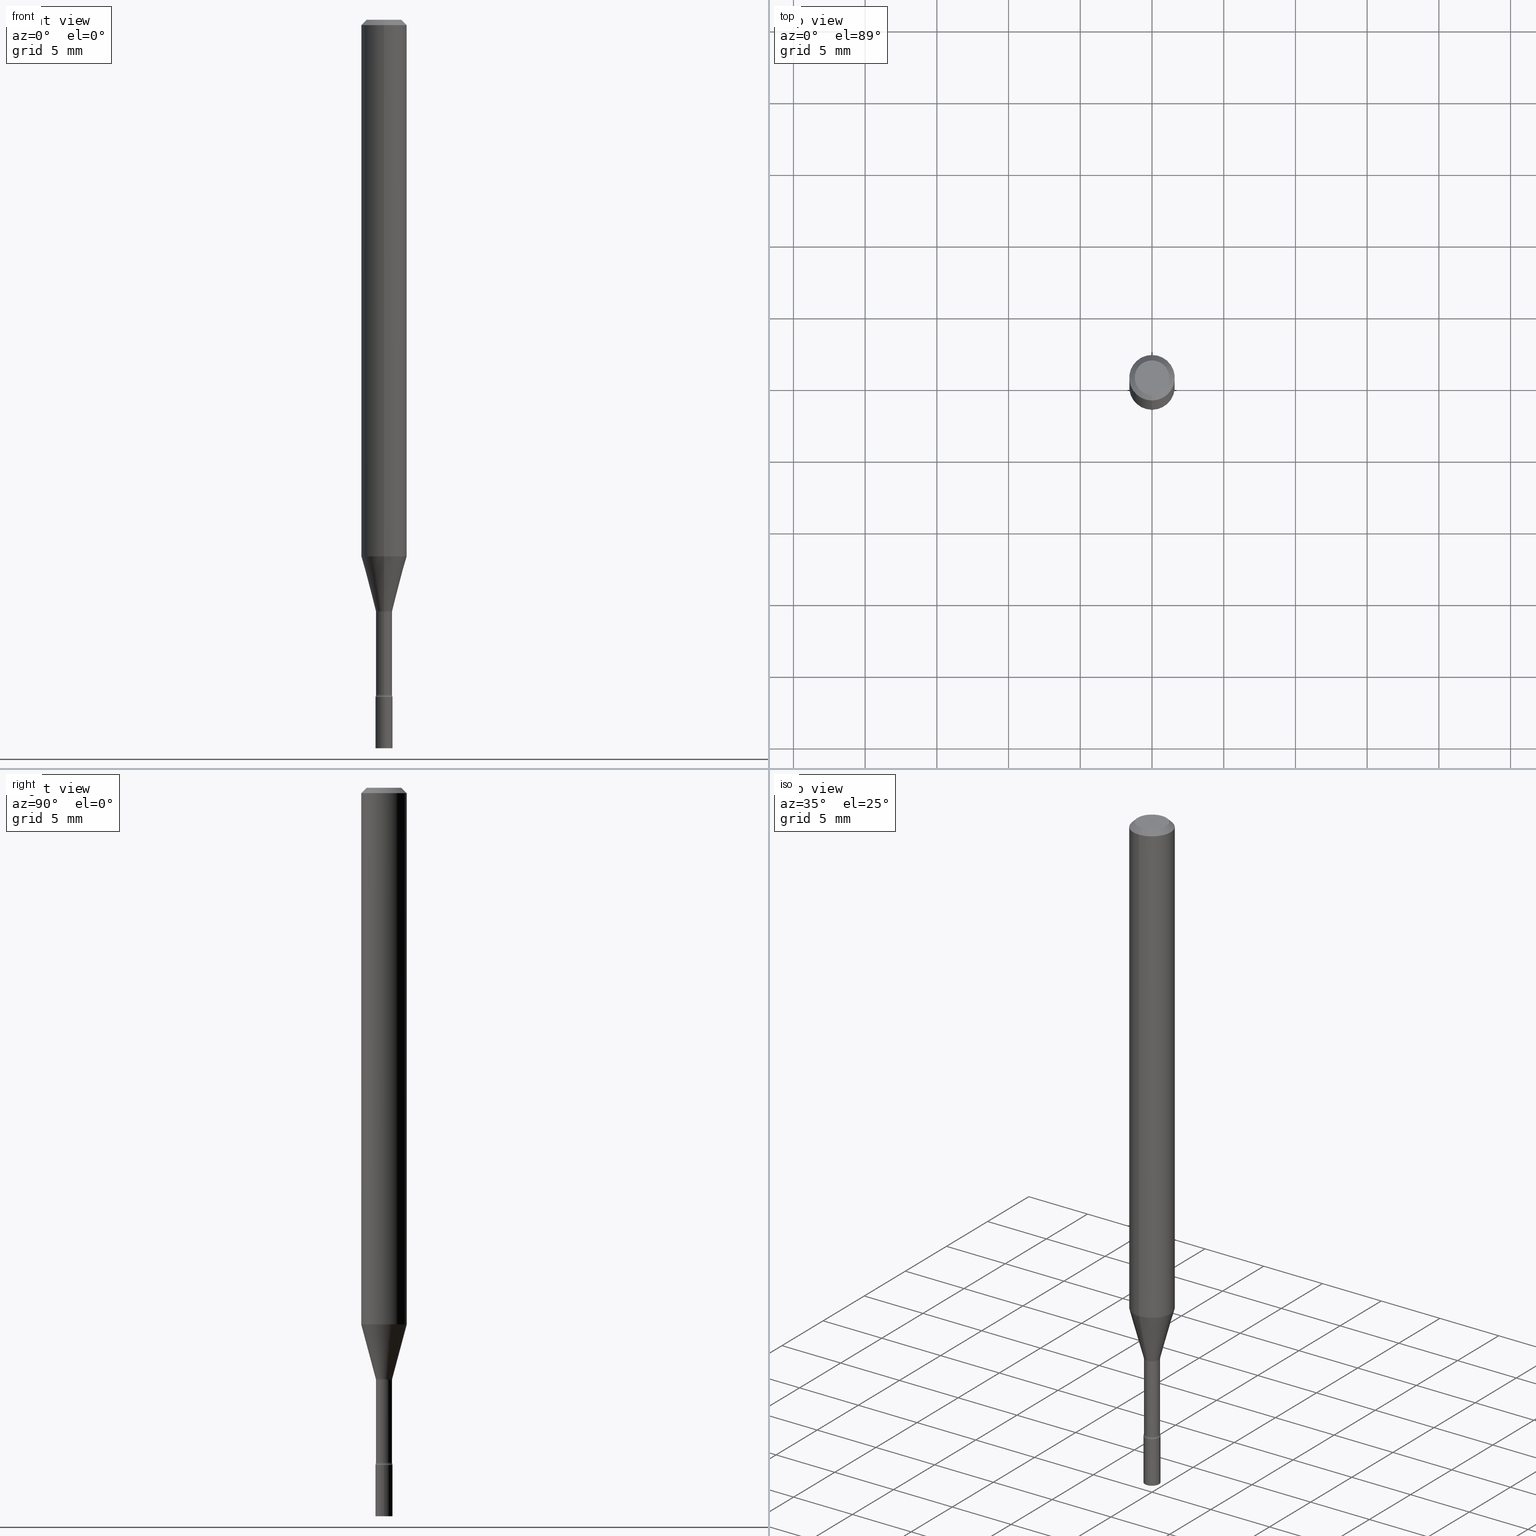
[diagram: canonical four-view strip — front | top / right | iso, engineering-drawing reading convention]
A machine part, canonical four-view strip (front | top / right | iso — engineering-drawing reading convention). The complete STEP part file that produces these views, byte-faithful:
ISO-10303-21;
HEADER;
FILE_DESCRIPTION (( 'STEP AP203' ),
    '1' );
FILE_NAME ('03409.STEP',
    '2024-03-08T21:18:24',
    ( '' ),
    ( '' ),
    'SwSTEP 2.0',
    'SolidWorks 2023',
    '' );
FILE_SCHEMA (( 'CONFIG_CONTROL_DESIGN' ));
ENDSEC;

DATA;
#1 = CARTESIAN_POINT ( 'NONE',  ( 3.668172361460384639E-31, -5.237266184094891392E-17, -0.01500000000000003067 ) ) ;
#2 = AXIS2_PLACEMENT_3D ( 'NONE', #41, #248, #3 ) ;
#3 = DIRECTION ( 'NONE',  ( -6.982962677686265922E-15, -1.000000000000000000, 3.491510789396586553E-15 ) ) ;
#4 = LOCAL_TIME ( 16, 18, 24.00000000000000000, #387 ) ;
#5 = ORIENTED_EDGE ( 'NONE', *, *, #213, .F. ) ;
#6 = EDGE_CURVE ( 'NONE', #166, #144, #128, .T. ) ;
#7 = DIRECTION ( 'NONE',  ( -1.000000000000000000, 6.982962677686265922E-15, -4.883557194083112340E-29 ) ) ;
#8 = ORIENTED_EDGE ( 'NONE', *, *, #517, .T. ) ;
#9 = AXIS2_PLACEMENT_3D ( 'NONE', #228, #465, #172 ) ;
#10 = CC_DESIGN_SECURITY_CLASSIFICATION ( #226, ( #60 ) ) ;
#11 = VERTEX_POINT ( 'NONE', #322 ) ;
#12 = PERSON_AND_ORGANIZATION ( #202, #287 ) ;
#13 = EDGE_CURVE ( 'NONE', #499, #20, #457, .T. ) ;
#14 = ORIENTED_EDGE ( 'NONE', *, *, #51, .T. ) ;
#15 = CARTESIAN_POINT ( 'NONE',  ( 2.636113549670369152E-16, 0.03709999999999432502, -1.625974787463811078 ) ) ;
#16 = CC_DESIGN_PERSON_AND_ORGANIZATION_ASSIGNMENT ( #12, #504, ( #60 ) ) ;
#17 = DIRECTION ( 'NONE',  ( -1.000000000000000000, 6.982962677686265922E-15, -4.876176775795935793E-29 ) ) ;
#18 = VECTOR ( 'NONE', #87, 39.37007874015748143 ) ;
#19 = CONICAL_SURFACE ( 'NONE', #262, 0.02261111260566402159, 0.2617993877991494633 ) ;
#20 = VERTEX_POINT ( 'NONE', #354 ) ;
#21 = CARTESIAN_POINT ( 'NONE',  ( 4.546126510698169319E-29, -6.490663808909408226E-15, -1.858999999999999986 ) ) ;
#22 = EDGE_LOOP ( 'NONE', ( #486, #268, #319, #136 ) ) ;
#23 = EDGE_CURVE ( 'NONE', #223, #315, #151, .T. ) ;
#24 = DIRECTION ( 'NONE',  ( 1.000000000000000000, -7.105427357601001070E-15, 4.926315869207342207E-29 ) ) ;
#25 = VECTOR ( 'NONE', #258, 39.37007874015748143 ) ;
#26 = AXIS2_PLACEMENT_3D ( 'NONE', #479, #444, #289 ) ;
#27 = ORIENTED_EDGE ( 'NONE', *, *, #345, .F. ) ;
#28 = CARTESIAN_POINT ( 'NONE',  ( 4.440892098500988052E-16, 0.06249999999999993755, -0.01500000000000024751 ) ) ;
#29 = ADVANCED_FACE ( 'NONE', ( #316 ), #70, .T. ) ;
#30 = ORIENTED_EDGE ( 'NONE', *, *, #380, .F. ) ;
#31 = CARTESIAN_POINT ( 'NONE',  ( 4.440892098500625669E-16, 0.06250000000000000000, -2.182194243372866596E-16 ) ) ;
#32 = MANIFOLD_SOLID_BREP ( 'Body-Move/Copy2[2]', #462 ) ;
#33 = DIRECTION ( 'NONE',  ( 6.982962677686265922E-15, 1.000000000000000000, -3.491510789396586948E-15 ) ) ;
#34 = EDGE_LOOP ( 'NONE', ( #439, #14, #325, #393 ) ) ;
#35 = APPROVAL_ROLE ( '' ) ;
#36 = CIRCLE ( 'NONE', #92, 0.01499999999999998036 ) ;
#37 = LOCAL_TIME ( 16, 18, 24.00000000000000000, #250 ) ;
#38 = DIRECTION ( 'NONE',  ( 2.445448240973584318E-29, -3.491510789396586948E-15, -1.000000000000000000 ) ) ;
#39 = ORIENTED_EDGE ( 'NONE', *, *, #345, .T. ) ;
#40 = VERTEX_POINT ( 'NONE', #216 ) ;
#41 = CARTESIAN_POINT ( 'NONE',  ( 0.000000000000000000, 0.000000000000000000, 0.000000000000000000 ) ) ;
#42 = ORIENTED_EDGE ( 'NONE', *, *, #89, .F. ) ;
#43 = CYLINDRICAL_SURFACE ( 'NONE', #182, 0.02350000000000000352 ) ;
#44 = DIRECTION ( 'NONE',  ( -6.982962677686266711E-15, -1.000000000000000000, 0.000000000000000000 ) ) ;
#45 = VECTOR ( 'NONE', #459, 39.37007874015748143 ) ;
#46 = VECTOR ( 'NONE', #394, 39.37007874015748143 ) ;
#47 = PLANE ( 'NONE',  #347 ) ;
#48 = APPROVAL_PERSON_ORGANIZATION ( #125, #447, #329 ) ;
#49 = EDGE_CURVE ( 'NONE', #499, #183, #469, .T. ) ;
#50 = EDGE_LOOP ( 'NONE', ( #185, #276, #265, #88 ) ) ;
#51 = EDGE_CURVE ( 'NONE', #223, #208, #245, .T. ) ;
#52 = AXIS2_PLACEMENT_3D ( 'NONE', #94, #54, #57 ) ;
#53 = LOCAL_TIME ( 16, 18, 24.00000000000000000, #501 ) ;
#54 = DIRECTION ( 'NONE',  ( -2.445448240973584878E-29, 3.491510789396586553E-15, 1.000000000000000000 ) ) ;
#55 = FACE_OUTER_BOUND ( 'NONE', #433, .T. ) ;
#56 = CC_DESIGN_PERSON_AND_ORGANIZATION_ASSIGNMENT ( #108, #383, ( #91 ) ) ;
#57 = DIRECTION ( 'NONE',  ( -6.982962677686265922E-15, -1.000000000000000000, 0.000000000000000000 ) ) ;
#58 = CIRCLE ( 'NONE', #381, 0.02350000000000000352 ) ;
#59 = DIRECTION ( 'NONE',  ( 1.000000000000000000, -6.982962677686269866E-15, 0.000000000000000000 ) ) ;
#60 = PRODUCT_DEFINITION_FORMATION_WITH_SPECIFIED_SOURCE ( 'ANY', '', #103, .NOT_KNOWN. ) ;
#61 = ADVANCED_FACE ( 'NONE', ( #150 ), #514, .T. ) ;
#62 = ORIENTED_EDGE ( 'NONE', *, *, #95, .F. ) ;
#63 = EDGE_CURVE ( 'NONE', #64, #11, #255, .T. ) ;
#64 = VERTEX_POINT ( 'NONE', #510 ) ;
#65 = DATE_AND_TIME ( #461, #4 ) ;
#66 = EDGE_LOOP ( 'NONE', ( #385, #350, #71, #308 ) ) ;
#67 = CARTESIAN_POINT ( 'NONE',  ( 3.976237183870775578E-29, -5.677108513716717305E-15, -1.625974787463811078 ) ) ;
#68 = CIRCLE ( 'NONE', #341, 0.04749999999999999362 ) ;
#69 = ORIENTED_EDGE ( 'NONE', *, *, #49, .T. ) ;
#70 = PLANE ( 'NONE',  #9 ) ;
#71 = ORIENTED_EDGE ( 'NONE', *, *, #502, .T. ) ;
#72 = APPROVAL ( #344, 'UNSPECIFIED' ) ;
#73 = CARTESIAN_POINT ( 'NONE',  ( -1.543234751768267479E-16, -0.02210000000000568107, -1.625974787463811078 ) ) ;
#74 = CARTESIAN_POINT ( 'NONE',  ( 3.668172361460384639E-31, -5.237266184094891392E-17, -0.01500000000000003067 ) ) ;
#75 = EDGE_LOOP ( 'NONE', ( #164, #395, #432, #42 ) ) ;
#76 = ADVANCED_FACE ( 'NONE', ( #186 ), #167, .F. ) ;
#77 = DIRECTION ( 'NONE',  ( -6.982962677686265922E-15, -1.000000000000000000, 3.491510789396586948E-15 ) ) ;
#78 = EDGE_CURVE ( 'NONE', #249, #40, #218, .T. ) ;
#79 = LINE ( 'NONE', #200, #323 ) ;
#80 = DIRECTION ( 'NONE',  ( -2.445468806185136597E-29, 3.491481338843145583E-15, 1.000000000000000000 ) ) ;
#81 = LINE ( 'NONE', #165, #18 ) ;
#82 = SHAPE_DEFINITION_REPRESENTATION ( #430, #420 ) ;
#83 = CYLINDRICAL_SURFACE ( 'NONE', #2, 0.06250000000000000000 ) ;
#84 = CYLINDRICAL_SURFACE ( 'NONE', #392, 0.02210000000000002587 ) ;
#85 = AXIS2_PLACEMENT_3D ( 'NONE', #148, #131, #306 ) ;
#86 = CIRCLE ( 'NONE', #275, 0.02350000000000000352 ) ;
#87 = DIRECTION ( 'NONE',  ( -2.445448240973584878E-29, 3.491510789396586948E-15, 1.000000000000000000 ) ) ;
#88 = ORIENTED_EDGE ( 'NONE', *, *, #351, .F. ) ;
#89 = EDGE_CURVE ( 'NONE', #179, #20, #109, .T. ) ;
#90 = DIRECTION ( 'NONE',  ( 6.982962677686265922E-15, 1.000000000000000000, -3.483106191921935554E-15 ) ) ;
#91 = PRODUCT_DEFINITION ( 'UNKNOWN', '', #60, #494 ) ;
#92 = AXIS2_PLACEMENT_3D ( 'NONE', #361, #241, #412 ) ;
#93 = VECTOR ( 'NONE', #452, 39.37007874015748143 ) ;
#94 = CARTESIAN_POINT ( 'NONE',  ( 3.966743255192128209E-29, -5.663553471389566321E-15, -1.622092501787272933 ) ) ;
#95 = EDGE_CURVE ( 'NONE', #104, #208, #181, .T. ) ;
#96 = DIRECTION ( 'NONE',  ( -2.445448240973584878E-29, 3.491510789396586553E-15, 1.000000000000000000 ) ) ;
#97 = EDGE_CURVE ( 'NONE', #166, #179, #415, .T. ) ;
#98 = AXIS2_PLACEMENT_3D ( 'NONE', #424, #145, #318 ) ;
#99 = AXIS2_PLACEMENT_3D ( 'NONE', #302, #257, #112 ) ;
#100 = PERSON_AND_ORGANIZATION_ROLE ( 'classification_officer' ) ;
#101 = ORIENTED_EDGE ( 'NONE', *, *, #51, .F. ) ;
#102 = DIRECTION ( 'NONE',  ( -6.982962677686265922E-15, -1.000000000000000000, 0.000000000000000000 ) ) ;
#103 = PRODUCT ( '03409', '03409', '', ( #485 ) ) ;
#104 = VERTEX_POINT ( 'NONE', #73 ) ;
#105 = DIRECTION ( 'NONE',  ( -2.445448240973584878E-29, 3.491510789396586553E-15, 1.000000000000000000 ) ) ;
#106 = CIRCLE ( 'NONE', #403, 0.06250000000000000000 ) ;
#107 = CC_DESIGN_APPROVAL ( #447, ( #60 ) ) ;
#108 = PERSON_AND_ORGANIZATION ( #202, #287 ) ;
#109 = LINE ( 'NONE', #379, #45 ) ;
#110 = CARTESIAN_POINT ( 'NONE',  ( 3.602695845204330567E-29, -5.143781497267456685E-15, -1.473225147374217503 ) ) ;
#111 = EDGE_LOOP ( 'NONE', ( #466, #417 ) ) ;
#112 = DIRECTION ( 'NONE',  ( 1.000000000000000000, -6.982962677686269866E-15, 0.000000000000000000 ) ) ;
#113 = DIRECTION ( 'NONE',  ( -6.982962677686266711E-15, -1.000000000000000000, 3.491510789396587342E-15 ) ) ;
#114 = AXIS2_PLACEMENT_3D ( 'NONE', #122, #295, #77 ) ;
#115 = CIRCLE ( 'NONE', #470, 0.06250000000000000000 ) ;
#116 = CARTESIAN_POINT ( 'NONE',  ( 0.000000000000000000, 0.000000000000000000, 0.000000000000000000 ) ) ;
#117 = APPROVAL_ROLE ( '' ) ;
#118 = CARTESIAN_POINT ( 'NONE',  ( 0.02350000000000000352, -7.147062300611918023E-15, -2.000000000000000000 ) ) ;
#119 = ORIENTED_EDGE ( 'NONE', *, *, #372, .F. ) ;
#120 = DIRECTION ( 'NONE',  ( 4.937700262164548042E-15, 0.7071067811865451302, -0.7071067811865499042 ) ) ;
#121 = APPROVAL_DATE_TIME ( #291, #447 ) ;
#122 = CARTESIAN_POINT ( 'NONE',  ( 4.530652276630265840E-29, -6.468570703757412318E-15, -1.852672283192177582 ) ) ;
#123 = CALENDAR_DATE ( 2024, 8, 3 ) ;
#124 = DIRECTION ( 'NONE',  ( 2.445448240973584878E-29, -3.491510789396586553E-15, -1.000000000000000000 ) ) ;
#125 = PERSON_AND_ORGANIZATION ( #202, #287 ) ;
#126 = TOROIDAL_SURFACE ( 'NONE', #114, 0.03710000000000002879, 0.01499999999999998036 ) ;
#127 = DIRECTION ( 'NONE',  ( -6.982962677686265922E-15, -1.000000000000000000, 0.000000000000000000 ) ) ;
#128 = LINE ( 'NONE', #31, #25 ) ;
#129 = CIRCLE ( 'NONE', #261, 0.01499999999999998036 ) ;
#130 =( GEOMETRIC_REPRESENTATION_CONTEXT ( 3 ) GLOBAL_UNCERTAINTY_ASSIGNED_CONTEXT ( ( #227 ) ) GLOBAL_UNIT_ASSIGNED_CONTEXT ( ( #147, #171, #146 ) ) REPRESENTATION_CONTEXT ( 'NONE', 'WORKASPACE' ) );
#131 = DIRECTION ( 'NONE',  ( -2.445448240973584878E-29, 3.491510789396586553E-15, 1.000000000000000000 ) ) ;
#132 = DIRECTION ( 'NONE',  ( 1.000000000000000000, -6.982962677686265922E-15, 4.876176775795935793E-29 ) ) ;
#133 = FACE_OUTER_BOUND ( 'NONE', #210, .T. ) ;
#134 = EDGE_LOOP ( 'NONE', ( #438, #449, #408, #27 ) ) ;
#135 = CARTESIAN_POINT ( 'NONE',  ( 3.668172361460384639E-31, -5.237266184094891392E-17, -0.01500000000000003067 ) ) ;
#136 = ORIENTED_EDGE ( 'NONE', *, *, #502, .F. ) ;
#137 = ADVANCED_FACE ( 'NONE', ( #170 ), #173, .F. ) ;
#138 = CARTESIAN_POINT ( 'NONE',  ( 0.000000000000000000, 0.000000000000000000, 0.000000000000000000 ) ) ;
#139 = DIRECTION ( 'NONE',  ( -2.445448240973584878E-29, 3.491510789396586553E-15, 1.000000000000000000 ) ) ;
#140 = ORIENTED_EDGE ( 'NONE', *, *, #198, .F. ) ;
#141 = AXIS2_PLACEMENT_3D ( 'NONE', #285, #487, #330 ) ;
#142 = DIRECTION ( 'NONE',  ( -2.445448240973584878E-29, 3.491510789396586553E-15, 1.000000000000000000 ) ) ;
#143 = DATE_AND_TIME ( #176, #53 ) ;
#144 = VERTEX_POINT ( 'NONE', #28 ) ;
#145 = DIRECTION ( 'NONE',  ( -2.445448240973584878E-29, 3.491510789396586553E-15, 1.000000000000000000 ) ) ;
#146 =( NAMED_UNIT ( * ) SI_UNIT ( $, .STERADIAN. ) SOLID_ANGLE_UNIT ( ) );
#147 =( CONVERSION_BASED_UNIT ( 'INCH', #426 ) LENGTH_UNIT ( ) NAMED_UNIT ( #468 ) );
#148 = CARTESIAN_POINT ( 'NONE',  ( 3.976270622386257300E-29, -5.677060627859345352E-15, -1.625974787463811078 ) ) ;
#149 = EDGE_LOOP ( 'NONE', ( #425, #155 ) ) ;
#150 = FACE_OUTER_BOUND ( 'NONE', #518, .T. ) ;
#151 = CIRCLE ( 'NONE', #52, 0.02261111260566402159 ) ;
#152 = APPLICATION_PROTOCOL_DEFINITION ( 'international standard', 'config_control_design', 1994, #349 ) ;
#153 = EDGE_CURVE ( 'NONE', #183, #499, #68, .T. ) ;
#154 = FACE_OUTER_BOUND ( 'NONE', #288, .T. ) ;
#155 = ORIENTED_EDGE ( 'NONE', *, *, #455, .T. ) ;
#156 = CYLINDRICAL_SURFACE ( 'NONE', #211, 0.02350000000000000352 ) ;
#157 = ADVANCED_FACE ( 'NONE', ( #203 ), #47, .F. ) ;
#158 = CARTESIAN_POINT ( 'NONE',  ( 4.546088279969894433E-29, -6.490718557488255193E-15, -1.858999999999999986 ) ) ;
#159 = AXIS2_PLACEMENT_3D ( 'NONE', #445, #7, #44 ) ;
#160 = AXIS2_PLACEMENT_3D ( 'NONE', #374, #199, #196 ) ;
#161 = FACE_OUTER_BOUND ( 'NONE', #50, .T. ) ;
#162 = COORDINATED_UNIVERSAL_TIME_OFFSET ( 5, 0, .BEHIND. ) ;
#163 = DIRECTION ( 'NONE',  ( -6.982962677686265922E-15, -1.000000000000000000, 0.000000000000000000 ) ) ;
#164 = ORIENTED_EDGE ( 'NONE', *, *, #198, .T. ) ;
#165 = CARTESIAN_POINT ( 'NONE',  ( -1.543234751768666594E-16, -0.02210000000000002587, 7.716238844566465556E-17 ) ) ;
#166 = VERTEX_POINT ( 'NONE', #410 ) ;
#167 = TOROIDAL_SURFACE ( 'NONE', #85, 0.03710000000000000103, 0.01499999999999998730 ) ;
#168 = CIRCLE ( 'NONE', #416, 0.02350000000000000352 ) ;
#169 = LINE ( 'NONE', #338, #93 ) ;
#170 = FACE_OUTER_BOUND ( 'NONE', #134, .T. ) ;
#171 =( NAMED_UNIT ( * ) PLANE_ANGLE_UNIT ( ) SI_UNIT ( $, .RADIAN. ) );
#172 = DIRECTION ( 'NONE',  ( 1.000000000000000000, -6.982962677686265922E-15, 4.876176775795935793E-29 ) ) ;
#173 = TOROIDAL_SURFACE ( 'NONE', #98, 0.03710000000000002879, 0.01499999999999998036 ) ;
#174 = CC_DESIGN_APPROVAL ( #343, ( #91 ) ) ;
#175 = DIRECTION ( 'NONE',  ( -6.982962677686265922E-15, -1.000000000000000000, 0.000000000000000000 ) ) ;
#176 = CALENDAR_DATE ( 2024, 8, 3 ) ;
#177 = EDGE_CURVE ( 'NONE', #223, #166, #368, .T. ) ;
#178 = DIRECTION ( 'NONE',  ( -2.445448240973584878E-29, 3.491510789396586553E-15, 1.000000000000000000 ) ) ;
#179 = VERTEX_POINT ( 'NONE', #193 ) ;
#180 = ORIENTED_EDGE ( 'NONE', *, *, #63, .F. ) ;
#181 = CIRCLE ( 'NONE', #234, 0.02210000000000000506 ) ;
#182 = AXIS2_PLACEMENT_3D ( 'NONE', #391, #270, #132 ) ;
#183 = VERTEX_POINT ( 'NONE', #362 ) ;
#184 = DIRECTION ( 'NONE',  ( 7.105427357601001859E-15, 1.000000000000000000, 0.000000000000000000 ) ) ;
#185 = ORIENTED_EDGE ( 'NONE', *, *, #6, .F. ) ;
#186 = FACE_OUTER_BOUND ( 'NONE', #34, .T. ) ;
#187 = PERSON_AND_ORGANIZATION ( #202, #287 ) ;
#188 = LINE ( 'NONE', #396, #382 ) ;
#189 = DIRECTION ( 'NONE',  ( -6.982962677686265922E-15, -1.000000000000000000, 4.370956789862821150E-15 ) ) ;
#190 = VECTOR ( 'NONE', #434, 39.37007874015748143 ) ;
#191 = ORIENTED_EDGE ( 'NONE', *, *, #455, .F. ) ;
#192 = DATE_AND_TIME ( #277, #436 ) ;
#193 = CARTESIAN_POINT ( 'NONE',  ( -4.364351673553557762E-16, -0.06250000000000517641, -1.473225147374217281 ) ) ;
#194 = DIRECTION ( 'NONE',  ( -6.982962677686265922E-15, -1.000000000000000000, 3.491510789396586553E-15 ) ) ;
#195 = APPROVAL_STATUS ( 'not_yet_approved' ) ;
#196 = DIRECTION ( 'NONE',  ( -6.982962677686265922E-15, -1.000000000000000000, 3.491510789396586948E-15 ) ) ;
#197 = FACE_OUTER_BOUND ( 'NONE', #66, .T. ) ;
#198 = EDGE_CURVE ( 'NONE', #179, #166, #106, .T. ) ;
#199 = DIRECTION ( 'NONE',  ( -2.445448240973584318E-29, 3.491510789396586948E-15, 1.000000000000000000 ) ) ;
#200 = CARTESIAN_POINT ( 'NONE',  ( 4.364351673553919652E-16, 0.06249999999999995143, -0.01500000000000024751 ) ) ;
#201 = APPROVAL_STATUS ( 'not_yet_approved' ) ;
#202 = PERSON ( 'UNSPECIFIED', 'UNSPECIFIED', 'UNSPECIFIED', ('UNSPECIFIED'), ('UNSPECIFIED'), ('UNSPECIFIED') ) ;
#203 = FACE_OUTER_BOUND ( 'NONE', #353, .T. ) ;
#204 = APPLICATION_CONTEXT ( 'configuration controlled 3d designs of mechanical parts and assemblies' ) ;
#205 = AXIS2_PLACEMENT_3D ( 'NONE', #74, #440, #279 ) ;
#206 = DIRECTION ( 'NONE',  ( -2.445448240973584878E-29, 3.491510789396586553E-15, 1.000000000000000000 ) ) ;
#207 = ORIENTED_EDGE ( 'NONE', *, *, #78, .T. ) ;
#208 = VERTEX_POINT ( 'NONE', #292 ) ;
#209 = EDGE_CURVE ( 'NONE', #315, #104, #219, .T. ) ;
#210 = EDGE_LOOP ( 'NONE', ( #282, #503, #62, #5 ) ) ;
#211 = AXIS2_PLACEMENT_3D ( 'NONE', #116, #448, #398 ) ;
#212 = AXIS2_PLACEMENT_3D ( 'NONE', #260, #307, #163 ) ;
#213 = EDGE_CURVE ( 'NONE', #64, #104, #81, .T. ) ;
#214 = ORIENTED_EDGE ( 'NONE', *, *, #512, .F. ) ;
#215 = DIRECTION ( 'NONE',  ( -2.445468806185136597E-29, 3.491481338843145583E-15, 1.000000000000000000 ) ) ;
#216 = CARTESIAN_POINT ( 'NONE',  ( -0.02350000000000000352, -6.569835700394226398E-15, -1.858999999999999986 ) ) ;
#217 = DIRECTION ( 'NONE',  ( -6.982962677686265922E-15, -1.000000000000000000, 3.491510789396586553E-15 ) ) ;
#218 = LINE ( 'NONE', #278, #190 ) ;
#219 = CIRCLE ( 'NONE', #159, 0.01499999999999998557 ) ;
#220 = CARTESIAN_POINT ( 'NONE',  ( 0.000000000000000000, 0.000000000000000000, 0.000000000000000000 ) ) ;
#221 = ORIENTED_EDGE ( 'NONE', *, *, #380, .T. ) ;
#222 = VERTEX_POINT ( 'NONE', #443 ) ;
#223 = VERTEX_POINT ( 'NONE', #478 ) ;
#224 = DIRECTION ( 'NONE',  ( -6.982962677686265922E-15, -1.000000000000000000, 4.370956789862821150E-15 ) ) ;
#225 = AXIS2_PLACEMENT_3D ( 'NONE', #513, #497, #102 ) ;
#226 = SECURITY_CLASSIFICATION ( '', '', #253 ) ;
#227 = UNCERTAINTY_MEASURE_WITH_UNIT (LENGTH_MEASURE( 1.000000000000000082E-05 ), #147, 'distance_accuracy_value', 'NONE');
#228 = CARTESIAN_POINT ( 'NONE',  ( 4.546126510698169319E-29, -6.490663808909408226E-15, -1.858999999999999986 ) ) ;
#229 = DIRECTION ( 'NONE',  ( -6.982962677686265922E-15, -1.000000000000000000, 0.000000000000000000 ) ) ;
#230 = ORIENTED_EDGE ( 'NONE', *, *, #78, .F. ) ;
#231 = PERSON_AND_ORGANIZATION ( #202, #287 ) ;
#232 = EDGE_CURVE ( 'NONE', #11, #208, #240, .T. ) ;
#233 = CARTESIAN_POINT ( 'NONE',  ( 4.890937612370273194E-29, -6.982962677686291165E-15, -2.000000000000000000 ) ) ;
#234 = AXIS2_PLACEMENT_3D ( 'NONE', #67, #397, #509 ) ;
#235 = CIRCLE ( 'NONE', #26, 0.02350000000000000352 ) ;
#236 = CARTESIAN_POINT ( 'NONE',  ( -1.640996229255817199E-16, -0.02350000000000648098, -1.858999999999999986 ) ) ;
#237 = CARTESIAN_POINT ( 'NONE',  ( 3.976270622386257300E-29, -5.677060627859345352E-15, -1.625974787463811078 ) ) ;
#238 = CARTESIAN_POINT ( 'NONE',  ( -3.773273898774340269E-16, -0.04749999999999999362, 1.369342504697572890E-16 ) ) ;
#239 = MANIFOLD_SOLID_BREP ( 'Body-Move/Copy2[1]', #313 ) ;
#240 = LINE ( 'NONE', #516, #274 ) ;
#241 = DIRECTION ( 'NONE',  ( -1.000000000000000000, 6.982962677686265922E-15, -4.883557194083112340E-29 ) ) ;
#242 = ORIENTED_EDGE ( 'NONE', *, *, #209, .T. ) ;
#243 = APPROVAL_DATE_TIME ( #454, #72 ) ;
#244 = CARTESIAN_POINT ( 'NONE',  ( -0.02350000000000000352, -6.569835700394226398E-15, -2.000000000000000000 ) ) ;
#245 = CIRCLE ( 'NONE', #481, 0.01499999999999998557 ) ;
#246 = FACE_OUTER_BOUND ( 'NONE', #111, .T. ) ;
#247 = CIRCLE ( 'NONE', #212, 0.02210000000000000506 ) ;
#248 = DIRECTION ( 'NONE',  ( -2.445448240973584878E-29, 3.491510789396586553E-15, 1.000000000000000000 ) ) ;
#249 = VERTEX_POINT ( 'NONE', #244 ) ;
#250 = COORDINATED_UNIVERSAL_TIME_OFFSET ( 5, 0, .BEHIND. ) ;
#251 = FACE_OUTER_BOUND ( 'NONE', #252, .T. ) ;
#252 = EDGE_LOOP ( 'NONE', ( #375, #336 ) ) ;
#253 = SECURITY_CLASSIFICATION_LEVEL ( 'unclassified' ) ;
#254 = ADVANCED_FACE ( 'NONE', ( #161 ), #83, .T. ) ;
#255 = CIRCLE ( 'NONE', #298, 0.02210000000000004669 ) ;
#256 = CIRCLE ( 'NONE', #99, 0.02350000000000000352 ) ;
#257 = DIRECTION ( 'NONE',  ( -2.445468806185136597E-29, 3.491481338843145583E-15, 1.000000000000000000 ) ) ;
#258 = DIRECTION ( 'NONE',  ( -2.445448240973584878E-29, 3.491510789396586948E-15, 1.000000000000000000 ) ) ;
#259 = CARTESIAN_POINT ( 'NONE',  ( -4.287811248607203282E-16, -0.06250000000000005551, -0.01499999999999981209 ) ) ;
#260 = CARTESIAN_POINT ( 'NONE',  ( 3.976237183870775578E-29, -5.677108513716717305E-15, -1.625974787463811078 ) ) ;
#261 = AXIS2_PLACEMENT_3D ( 'NONE', #474, #327, #360 ) ;
#262 = AXIS2_PLACEMENT_3D ( 'NONE', #267, #139, #431 ) ;
#263 = ORIENTED_EDGE ( 'NONE', *, *, #264, .F. ) ;
#264 = EDGE_CURVE ( 'NONE', #315, #223, #321, .T. ) ;
#265 = ORIENTED_EDGE ( 'NONE', *, *, #89, .T. ) ;
#266 = CYLINDRICAL_SURFACE ( 'NONE', #405, 0.06250000000000000000 ) ;
#267 = CARTESIAN_POINT ( 'NONE',  ( 3.966743255192128209E-29, -5.663553471389566321E-15, -1.622092501787272933 ) ) ;
#268 = ORIENTED_EDGE ( 'NONE', *, *, #13, .T. ) ;
#269 = DIRECTION ( 'NONE',  ( -2.445448240973584878E-29, 3.491510789396586553E-15, 1.000000000000000000 ) ) ;
#270 = DIRECTION ( 'NONE',  ( -2.445468806185136597E-29, 3.491481338843145583E-15, 1.000000000000000000 ) ) ;
#271 = ADVANCED_FACE ( 'NONE', ( #197 ), #356, .T. ) ;
#272 = ORIENTED_EDGE ( 'NONE', *, *, #314, .F. ) ;
#273 = DIRECTION ( 'NONE',  ( -6.982962677686266711E-15, -1.000000000000000000, 3.491510789396587342E-15 ) ) ;
#274 = VECTOR ( 'NONE', #333, 39.37007874015748143 ) ;
#275 = AXIS2_PLACEMENT_3D ( 'NONE', #21, #215, #59 ) ;
#276 = ORIENTED_EDGE ( 'NONE', *, *, #97, .T. ) ;
#277 = CALENDAR_DATE ( 2024, 8, 3 ) ;
#278 = CARTESIAN_POINT ( 'NONE',  ( -0.02350000000000000352, 1.669775429036235687E-16, -1.155949746209903035E-30 ) ) ;
#279 = DIRECTION ( 'NONE',  ( -6.982962677686265922E-15, -1.000000000000000000, 3.483106191921935554E-15 ) ) ;
#280 = EDGE_CURVE ( 'NONE', #464, #355, #58, .T. ) ;
#281 = DIRECTION ( 'NONE',  ( 6.982962677686265922E-15, 1.000000000000000000, -3.483106191921935554E-15 ) ) ;
#282 = ORIENTED_EDGE ( 'NONE', *, *, #63, .T. ) ;
#283 = ADVANCED_FACE ( 'NONE', ( #297 ), #126, .F. ) ;
#284 = DATE_TIME_ROLE ( 'creation_date' ) ;
#285 = CARTESIAN_POINT ( 'NONE',  ( 3.966743255192128209E-29, -5.663553471389566321E-15, -1.622092501787272933 ) ) ;
#286 = AXIS2_PLACEMENT_3D ( 'NONE', #237, #404, #324 ) ;
#287 = ORGANIZATION ( 'UNSPECIFIED', 'UNSPECIFIED', '' ) ;
#288 = EDGE_LOOP ( 'NONE', ( #101, #263, #242, #413 ) ) ;
#289 = DIRECTION ( 'NONE',  ( 1.000000000000000000, -6.982962677686269866E-15, 0.000000000000000000 ) ) ;
#290 = DIRECTION ( 'NONE',  ( -2.445448240973584878E-29, 3.491510789396586553E-15, 1.000000000000000000 ) ) ;
#291 = DATE_AND_TIME ( #123, #37 ) ;
#292 = CARTESIAN_POINT ( 'NONE',  ( 1.570299446030275858E-16, 0.02209999999999432904, -1.625974787463811078 ) ) ;
#293 = FACE_OUTER_BOUND ( 'NONE', #75, .T. ) ;
#294 = EDGE_CURVE ( 'NONE', #339, #249, #328, .T. ) ;
#295 = DIRECTION ( 'NONE',  ( -2.445448240973584878E-29, 3.491510789396586553E-15, 1.000000000000000000 ) ) ;
#296 = ORIENTED_EDGE ( 'NONE', *, *, #23, .T. ) ;
#297 = FACE_OUTER_BOUND ( 'NONE', #389, .T. ) ;
#298 = AXIS2_PLACEMENT_3D ( 'NONE', #471, #269, #229 ) ;
#299 = FACE_OUTER_BOUND ( 'NONE', #378, .T. ) ;
#300 = CC_DESIGN_PERSON_AND_ORGANIZATION_ASSIGNMENT ( #511, #100, ( #226 ) ) ;
#301 = ORIENTED_EDGE ( 'NONE', *, *, #372, .T. ) ;
#302 = CARTESIAN_POINT ( 'NONE',  ( 4.546126510698169319E-29, -6.490663808909408226E-15, -1.858999999999999986 ) ) ;
#303 = ORIENTED_EDGE ( 'NONE', *, *, #153, .T. ) ;
#304 = AXIS2_PLACEMENT_3D ( 'NONE', #340, #421, #273 ) ;
#305 = LOCAL_TIME ( 16, 18, 24.00000000000000000, #451 ) ;
#306 = DIRECTION ( 'NONE',  ( -6.982962677686265922E-15, -1.000000000000000000, 3.491510789396586553E-15 ) ) ;
#307 = DIRECTION ( 'NONE',  ( -2.445448240973584878E-29, 3.491510789396586553E-15, 1.000000000000000000 ) ) ;
#308 = ORIENTED_EDGE ( 'NONE', *, *, #351, .T. ) ;
#309 = PERSON_AND_ORGANIZATION ( #202, #287 ) ;
#310 = ORIENTED_EDGE ( 'NONE', *, *, #177, .F. ) ;
#311 = CARTESIAN_POINT ( 'NONE',  ( 1.640996229256761859E-16, 0.02349999999999301953, -2.000000000000000000 ) ) ;
#312 = ADVANCED_FACE ( 'NONE', ( #154 ), #490, .F. ) ;
#313 = CLOSED_SHELL ( 'NONE', ( #317, #29, #475, #409 ) ) ;
#314 = EDGE_CURVE ( 'NONE', #11, #355, #129, .T. ) ;
#315 = VERTEX_POINT ( 'NONE', #519 ) ;
#316 = FACE_OUTER_BOUND ( 'NONE', #149, .T. ) ;
#317 = ADVANCED_FACE ( 'NONE', ( #482 ), #156, .T. ) ;
#318 = DIRECTION ( 'NONE',  ( -6.982962677686265922E-15, -1.000000000000000000, 3.491510789396586948E-15 ) ) ;
#319 = ORIENTED_EDGE ( 'NONE', *, *, #367, .T. ) ;
#320 = APPROVAL_DATE_TIME ( #192, #343 ) ;
#321 = CIRCLE ( 'NONE', #141, 0.02261111260566402159 ) ;
#322 = CARTESIAN_POINT ( 'NONE',  ( 1.620037437533483063E-16, 0.02209999999999358311, -1.852672283192177582 ) ) ;
#323 = VECTOR ( 'NONE', #120, 39.37007874015748143 ) ;
#324 = DIRECTION ( 'NONE',  ( -6.982962677686265922E-15, -1.000000000000000000, 3.491510789396586553E-15 ) ) ;
#325 = ORIENTED_EDGE ( 'NONE', *, *, #489, .T. ) ;
#326 = CARTESIAN_POINT ( 'NONE',  ( 1.606616180941216531E-16, 0.02261111260565835945, -1.622092501787272933 ) ) ;
#327 = DIRECTION ( 'NONE',  ( 1.000000000000000000, -7.105427357601001070E-15, 4.926315869207342207E-29 ) ) ;
#328 = CIRCLE ( 'NONE', #427, 0.02350000000000000352 ) ;
#329 = APPROVAL_ROLE ( '' ) ;
#330 = DIRECTION ( 'NONE',  ( -6.982962677686265922E-15, -1.000000000000000000, 0.000000000000000000 ) ) ;
#331 = EDGE_LOOP ( 'NONE', ( #377, #207, #214, #30 ) ) ;
#332 = ADVANCED_FACE ( 'NONE', ( #299 ), #84, .T. ) ;
#333 = DIRECTION ( 'NONE',  ( -2.445448240973584878E-29, 3.491510789396586948E-15, 1.000000000000000000 ) ) ;
#334 = DIRECTION ( 'NONE',  ( -2.445448240973584878E-29, 3.491510789396586553E-15, 1.000000000000000000 ) ) ;
#335 = CARTESIAN_POINT ( 'NONE',  ( 3.668172361460384639E-31, -5.237266184094891392E-17, -0.01500000000000003067 ) ) ;
#336 = ORIENTED_EDGE ( 'NONE', *, *, #495, .F. ) ;
#337 = PERSON_AND_ORGANIZATION_ROLE ( 'design_supplier' ) ;
#338 = CARTESIAN_POINT ( 'NONE',  ( 0.02350000000000000352, -1.640996229256272766E-16, 1.145901542312045115E-30 ) ) ;
#339 = VERTEX_POINT ( 'NONE', #118 ) ;
#340 = CARTESIAN_POINT ( 'NONE',  ( 7.070405167752904242E-46, -1.009483476893645882E-31, -2.891251202658055530E-17 ) ) ;
#341 = AXIS2_PLACEMENT_3D ( 'NONE', #467, #105, #113 ) ;
#342 = VECTOR ( 'NONE', #363, 39.37007874015748854 ) ;
#343 = APPROVAL ( #195, 'UNSPECIFIED' ) ;
#344 = APPROVAL_STATUS ( 'not_yet_approved' ) ;
#345 = EDGE_CURVE ( 'NONE', #64, #464, #36, .T. ) ;
#346 = PLANE ( 'NONE',  #446 ) ;
#347 = AXIS2_PLACEMENT_3D ( 'NONE', #411, #38, #33 ) ;
#348 = APPROVAL_PERSON_ORGANIZATION ( #309, #72, #117 ) ;
#349 = APPLICATION_CONTEXT ( 'configuration controlled 3d designs of mechanical parts and assemblies' ) ;
#350 = ORIENTED_EDGE ( 'NONE', *, *, #153, .F. ) ;
#351 = EDGE_CURVE ( 'NONE', #144, #20, #456, .T. ) ;
#352 = ORIENTED_EDGE ( 'NONE', *, *, #264, .T. ) ;
#353 = EDGE_LOOP ( 'NONE', ( #303, #69 ) ) ;
#354 = CARTESIAN_POINT ( 'NONE',  ( -4.364351673553912750E-16, -0.06250000000000005551, -0.01499999999999981209 ) ) ;
#355 = VERTEX_POINT ( 'NONE', #472 ) ;
#356 = CONICAL_SURFACE ( 'NONE', #364, 0.06250000000000000000, 0.7853981633974483900 ) ;
#357 = DIRECTION ( 'NONE',  ( -2.445448240973584878E-29, 3.491510789396586553E-15, 1.000000000000000000 ) ) ;
#358 = CC_DESIGN_APPROVAL ( #72, ( #226 ) ) ;
#359 = ADVANCED_FACE ( 'NONE', ( #55 ), #19, .T. ) ;
#360 = DIRECTION ( 'NONE',  ( 7.105427357601001859E-15, 1.000000000000000000, 0.000000000000000000 ) ) ;
#361 = CARTESIAN_POINT ( 'NONE',  ( -2.590679153421153350E-16, -0.03710000000000649584, -1.852672283192177582 ) ) ;
#362 = CARTESIAN_POINT ( 'NONE',  ( 3.840629472727447874E-16, 0.04749999999999999362, -1.947592745229183872E-16 ) ) ;
#363 = DIRECTION ( 'NONE',  ( 1.839019923739594399E-15, 0.2588190451025241257, 0.9659258262890673130 ) ) ;
#364 = AXIS2_PLACEMENT_3D ( 'NONE', #1, #124, #281 ) ;
#365 = APPLICATION_PROTOCOL_DEFINITION ( 'international standard', 'config_control_design', 1994, #204 ) ;
#366 = CONICAL_SURFACE ( 'NONE', #515, 0.06250000000000000000, 0.7853981633974483900 ) ;
#367 = EDGE_CURVE ( 'NONE', #20, #144, #115, .T. ) ;
#368 = LINE ( 'NONE', #326, #342 ) ;
#369 = ADVANCED_FACE ( 'NONE', ( #133 ), #384, .T. ) ;
#370 = FACE_OUTER_BOUND ( 'NONE', #22, .T. ) ;
#371 = EDGE_LOOP ( 'NONE', ( #230, #435, #221, #191 ) ) ;
#372 = EDGE_CURVE ( 'NONE', #315, #179, #188, .T. ) ;
#373 = AXIS2_PLACEMENT_3D ( 'NONE', #437, #96, #224 ) ;
#374 = CARTESIAN_POINT ( 'NONE',  ( 1.640996229256727347E-16, 0.02349999999999350872, -1.858999999999999986 ) ) ;
#375 = ORIENTED_EDGE ( 'NONE', *, *, #294, .F. ) ;
#376 = CALENDAR_DATE ( 2024, 8, 3 ) ;
#377 = ORIENTED_EDGE ( 'NONE', *, *, #294, .T. ) ;
#378 = EDGE_LOOP ( 'NONE', ( #505, #8, #484, #400 ) ) ;
#379 = CARTESIAN_POINT ( 'NONE',  ( -4.364351673553916201E-16, -0.06250000000000000000, 2.182194243372866596E-16 ) ) ;
#380 = EDGE_CURVE ( 'NONE', #339, #222, #169, .T. ) ;
#381 = AXIS2_PLACEMENT_3D ( 'NONE', #158, #357, #414 ) ;
#382 = VECTOR ( 'NONE', #477, 39.37007874015748854 ) ;
#383 = PERSON_AND_ORGANIZATION_ROLE ( 'creator' ) ;
#384 = CYLINDRICAL_SURFACE ( 'NONE', #483, 0.02210000000000002587 ) ;
#385 = ORIENTED_EDGE ( 'NONE', *, *, #13, .F. ) ;
#386 = CARTESIAN_POINT ( 'NONE',  ( 4.546088279969894433E-29, -6.490718557488255193E-15, -1.858999999999999986 ) ) ;
#387 = COORDINATED_UNIVERSAL_TIME_OFFSET ( 5, 0, .BEHIND. ) ;
#388 = DIRECTION ( 'NONE',  ( -6.982962677686265922E-15, -1.000000000000000000, 3.483106191921935554E-15 ) ) ;
#389 = EDGE_LOOP ( 'NONE', ( #272, #180, #39, #428 ) ) ;
#390 = CARTESIAN_POINT ( 'NONE',  ( 4.530614176032826232E-29, -6.468625265981497210E-15, -1.852672283192177582 ) ) ;
#391 = CARTESIAN_POINT ( 'NONE',  ( 0.000000000000000000, 0.000000000000000000, 0.000000000000000000 ) ) ;
#392 = AXIS2_PLACEMENT_3D ( 'NONE', #407, #334, #194 ) ;
#393 = ORIENTED_EDGE ( 'NONE', *, *, #209, .F. ) ;
#394 = DIRECTION ( 'NONE',  ( -4.851104656540964275E-15, -0.7071067811865500152, -0.7071067811865450192 ) ) ;
#395 = ORIENTED_EDGE ( 'NONE', *, *, #6, .T. ) ;
#396 = CARTESIAN_POINT ( 'NONE',  ( -1.578925554262736576E-16, -0.02261111260566968720, -1.622092501787272933 ) ) ;
#397 = DIRECTION ( 'NONE',  ( -2.445448240973584878E-29, 3.491510789396586553E-15, 1.000000000000000000 ) ) ;
#398 = DIRECTION ( 'NONE',  ( 1.000000000000000000, -6.982962677686265922E-15, 4.876176775795935793E-29 ) ) ;
#399 = ORIENTED_EDGE ( 'NONE', *, *, #97, .F. ) ;
#400 = ORIENTED_EDGE ( 'NONE', *, *, #489, .F. ) ;
#401 = ADVANCED_FACE ( 'NONE', ( #370 ), #366, .T. ) ;
#402 = DIRECTION ( 'NONE',  ( -6.982962677686265922E-15, -1.000000000000000000, 3.491510789396586553E-15 ) ) ;
#403 = AXIS2_PLACEMENT_3D ( 'NONE', #110, #206, #189 ) ;
#404 = DIRECTION ( 'NONE',  ( -2.445448240973584878E-29, 3.491510789396586553E-15, 1.000000000000000000 ) ) ;
#405 = AXIS2_PLACEMENT_3D ( 'NONE', #138, #142, #217 ) ;
#406 = PRODUCT_RELATED_PRODUCT_CATEGORY ( 'detail', '', ( #103 ) ) ;
#407 = CARTESIAN_POINT ( 'NONE',  ( 0.000000000000000000, 0.000000000000000000, 0.000000000000000000 ) ) ;
#408 = ORIENTED_EDGE ( 'NONE', *, *, #441, .T. ) ;
#409 = ADVANCED_FACE ( 'NONE', ( #251 ), #346, .T. ) ;
#410 = CARTESIAN_POINT ( 'NONE',  ( 4.440892098500984107E-16, 0.06249999999999483746, -1.473225147374217725 ) ) ;
#411 = CARTESIAN_POINT ( 'NONE',  ( 3.316907271900976096E-16, 0.04749999999999999362, -1.803030185096281312E-16 ) ) ;
#412 = DIRECTION ( 'NONE',  ( -6.982962677686265133E-15, -1.000000000000000000, 0.000000000000000000 ) ) ;
#413 = ORIENTED_EDGE ( 'NONE', *, *, #95, .T. ) ;
#414 = DIRECTION ( 'NONE',  ( -6.982962677686265922E-15, -1.000000000000000000, 0.000000000000000000 ) ) ;
#415 = CIRCLE ( 'NONE', #373, 0.06250000000000000000 ) ;
#416 = AXIS2_PLACEMENT_3D ( 'NONE', #386, #496, #127 ) ;
#417 = ORIENTED_EDGE ( 'NONE', *, *, #441, .F. ) ;
#418 = DIRECTION ( 'NONE',  ( 0.000000000000000000, 0.000000000000000000, 1.000000000000000000 ) ) ;
#419 = AXIS2_PLACEMENT_3D ( 'NONE', #423, #418, #488 ) ;
#420 = ADVANCED_BREP_SHAPE_REPRESENTATION ( '03409', ( #239, #32, #419 ), #130 ) ;
#421 = DIRECTION ( 'NONE',  ( -2.445448240973584878E-29, 3.491510789396586553E-15, 1.000000000000000000 ) ) ;
#422 = CC_DESIGN_PERSON_AND_ORGANIZATION_ASSIGNMENT ( #187, #476, ( #103 ) ) ;
#423 = CARTESIAN_POINT ( 'NONE',  ( 0.000000000000000000, 0.000000000000000000, 0.000000000000000000 ) ) ;
#424 = CARTESIAN_POINT ( 'NONE',  ( 4.530652276630265840E-29, -6.468570703757412318E-15, -1.852672283192177582 ) ) ;
#425 = ORIENTED_EDGE ( 'NONE', *, *, #512, .T. ) ;
#426 = LENGTH_MEASURE_WITH_UNIT ( LENGTH_MEASURE( 0.02539999999999999897 ), #460 );
#427 = AXIS2_PLACEMENT_3D ( 'NONE', #233, #80, #450 ) ;
#428 = ORIENTED_EDGE ( 'NONE', *, *, #280, .T. ) ;
#429 = DIRECTION ( 'NONE',  ( 2.438088387897960049E-29, -3.491481338843145188E-15, -1.000000000000000000 ) ) ;
#430 = PRODUCT_DEFINITION_SHAPE ( 'NONE', 'NONE',  #91 ) ;
#431 = DIRECTION ( 'NONE',  ( -6.982962677686265922E-15, -1.000000000000000000, 0.000000000000000000 ) ) ;
#432 = ORIENTED_EDGE ( 'NONE', *, *, #367, .F. ) ;
#433 = EDGE_LOOP ( 'NONE', ( #352, #508, #140, #119 ) ) ;
#434 = DIRECTION ( 'NONE',  ( -2.445468806185136877E-29, 3.491481338843145188E-15, 1.000000000000000000 ) ) ;
#435 = ORIENTED_EDGE ( 'NONE', *, *, #495, .T. ) ;
#436 = LOCAL_TIME ( 16, 18, 24.00000000000000000, #162 ) ;
#437 = CARTESIAN_POINT ( 'NONE',  ( 3.602695845204330567E-29, -5.143781497267456685E-15, -1.473225147374217503 ) ) ;
#438 = ORIENTED_EDGE ( 'NONE', *, *, #517, .F. ) ;
#439 = ORIENTED_EDGE ( 'NONE', *, *, #23, .F. ) ;
#440 = DIRECTION ( 'NONE',  ( -2.445448240973584878E-29, 3.491510789396586553E-15, 1.000000000000000000 ) ) ;
#441 = EDGE_CURVE ( 'NONE', #355, #464, #168, .T. ) ;
#442 = CC_DESIGN_DATE_AND_TIME_ASSIGNMENT ( #65, #473, ( #226 ) ) ;
#443 = CARTESIAN_POINT ( 'NONE',  ( 0.02350000000000000352, -6.654763431835035084E-15, -1.858999999999999986 ) ) ;
#444 = DIRECTION ( 'NONE',  ( -2.445468806185136597E-29, 3.491481338843145583E-15, 1.000000000000000000 ) ) ;
#445 = CARTESIAN_POINT ( 'NONE',  ( -2.590679153421207585E-16, -0.03710000000000568399, -1.625974787463811078 ) ) ;
#446 = AXIS2_PLACEMENT_3D ( 'NONE', #311, #429, #17 ) ;
#447 = APPROVAL ( #201, 'UNSPECIFIED' ) ;
#448 = DIRECTION ( 'NONE',  ( -2.445468806185136597E-29, 3.491481338843145583E-15, 1.000000000000000000 ) ) ;
#449 = ORIENTED_EDGE ( 'NONE', *, *, #314, .T. ) ;
#450 = DIRECTION ( 'NONE',  ( 1.000000000000000000, -6.982962677686269866E-15, 0.000000000000000000 ) ) ;
#451 = COORDINATED_UNIVERSAL_TIME_OFFSET ( 5, 0, .BEHIND. ) ;
#452 = DIRECTION ( 'NONE',  ( -2.445468806185136877E-29, 3.491481338843145188E-15, 1.000000000000000000 ) ) ;
#453 = AXIS2_PLACEMENT_3D ( 'NONE', #390, #178, #175 ) ;
#454 = DATE_AND_TIME ( #376, #305 ) ;
#455 = EDGE_CURVE ( 'NONE', #40, #222, #256, .T. ) ;
#456 = CIRCLE ( 'NONE', #205, 0.06250000000000000000 ) ;
#457 = LINE ( 'NONE', #259, #46 ) ;
#458 = APPROVAL_PERSON_ORGANIZATION ( #231, #343, #35 ) ;
#459 = DIRECTION ( 'NONE',  ( -2.445448240973584878E-29, 3.491510789396586948E-15, 1.000000000000000000 ) ) ;
#460 =( LENGTH_UNIT ( ) NAMED_UNIT ( * ) SI_UNIT ( $, .METRE. ) );
#461 = CALENDAR_DATE ( 2024, 8, 3 ) ;
#462 = CLOSED_SHELL ( 'NONE', ( #76, #369, #137, #401, #506, #359, #61, #254, #271, #157, #493, #283, #332, #312 ) ) ;
#463 = PERSON_AND_ORGANIZATION ( #202, #287 ) ;
#464 = VERTEX_POINT ( 'NONE', #236 ) ;
#465 = DIRECTION ( 'NONE',  ( -2.438088387897960049E-29, 3.491481338843145188E-15, 1.000000000000000000 ) ) ;
#466 = ORIENTED_EDGE ( 'NONE', *, *, #280, .F. ) ;
#467 = CARTESIAN_POINT ( 'NONE',  ( 7.070405167752904242E-46, -1.009483476893645882E-31, -2.891251202658055530E-17 ) ) ;
#468 = DIMENSIONAL_EXPONENTS ( 1.000000000000000000, 0.000000000000000000, 0.000000000000000000, 0.000000000000000000, 0.000000000000000000, 0.000000000000000000, 0.000000000000000000 ) ;
#469 = CIRCLE ( 'NONE', #304, 0.04749999999999999362 ) ;
#470 = AXIS2_PLACEMENT_3D ( 'NONE', #135, #498, #388 ) ;
#471 = CARTESIAN_POINT ( 'NONE',  ( 4.530614176032826232E-29, -6.468625265981497210E-15, -1.852672283192177582 ) ) ;
#472 = CARTESIAN_POINT ( 'NONE',  ( 1.669775429036689036E-16, 0.02349999999999349831, -1.858999999999999986 ) ) ;
#473 = DATE_TIME_ROLE ( 'classification_date' ) ;
#474 = CARTESIAN_POINT ( 'NONE',  ( 2.636113549670426344E-16, 0.03709999999999356174, -1.852672283192177582 ) ) ;
#475 = ADVANCED_FACE ( 'NONE', ( #480 ), #43, .T. ) ;
#476 = PERSON_AND_ORGANIZATION_ROLE ( 'design_owner' ) ;
#477 = DIRECTION ( 'NONE',  ( -1.807323732225324223E-15, -0.2588190451025173533, 0.9659258262890690894 ) ) ;
#478 = CARTESIAN_POINT ( 'NONE',  ( 3.023754139721102784E-16, 0.02261111260565836292, -1.622092501787272933 ) ) ;
#479 = CARTESIAN_POINT ( 'NONE',  ( 4.890937612370273194E-29, -6.982962677686291165E-15, -2.000000000000000000 ) ) ;
#480 = FACE_OUTER_BOUND ( 'NONE', #371, .T. ) ;
#481 = AXIS2_PLACEMENT_3D ( 'NONE', #15, #24, #184 ) ;
#482 = FACE_OUTER_BOUND ( 'NONE', #331, .T. ) ;
#483 = AXIS2_PLACEMENT_3D ( 'NONE', #220, #290, #402 ) ;
#484 = ORIENTED_EDGE ( 'NONE', *, *, #213, .T. ) ;
#485 = MECHANICAL_CONTEXT ( 'NONE', #204, 'mechanical' ) ;
#486 = ORIENTED_EDGE ( 'NONE', *, *, #49, .F. ) ;
#487 = DIRECTION ( 'NONE',  ( -2.445448240973584878E-29, 3.491510789396586553E-15, 1.000000000000000000 ) ) ;
#488 = DIRECTION ( 'NONE',  ( 1.000000000000000000, 0.000000000000000000, 0.000000000000000000 ) ) ;
#489 = EDGE_CURVE ( 'NONE', #208, #104, #247, .T. ) ;
#490 = TOROIDAL_SURFACE ( 'NONE', #286, 0.03710000000000000103, 0.01499999999999998730 ) ;
#491 = DIRECTION ( 'NONE',  ( 2.445448240973584878E-29, -3.491510789396586553E-15, -1.000000000000000000 ) ) ;
#492 = PLANE ( 'NONE',  #160 ) ;
#493 = ADVANCED_FACE ( 'NONE', ( #246 ), #492, .F. ) ;
#494 = DESIGN_CONTEXT ( 'detailed design', #349, 'design' ) ;
#495 = EDGE_CURVE ( 'NONE', #249, #339, #235, .T. ) ;
#496 = DIRECTION ( 'NONE',  ( -2.445448240973584878E-29, 3.491510789396586553E-15, 1.000000000000000000 ) ) ;
#497 = DIRECTION ( 'NONE',  ( -2.445448240973584878E-29, 3.491510789396586553E-15, 1.000000000000000000 ) ) ;
#498 = DIRECTION ( 'NONE',  ( -2.445448240973584878E-29, 3.491510789396586553E-15, 1.000000000000000000 ) ) ;
#499 = VERTEX_POINT ( 'NONE', #238 ) ;
#500 = CC_DESIGN_PERSON_AND_ORGANIZATION_ASSIGNMENT ( #463, #337, ( #60 ) ) ;
#501 = COORDINATED_UNIVERSAL_TIME_OFFSET ( 5, 0, .BEHIND. ) ;
#502 = EDGE_CURVE ( 'NONE', #183, #144, #79, .T. ) ;
#503 = ORIENTED_EDGE ( 'NONE', *, *, #232, .T. ) ;
#504 = PERSON_AND_ORGANIZATION_ROLE ( 'creator' ) ;
#505 = ORIENTED_EDGE ( 'NONE', *, *, #232, .F. ) ;
#506 = ADVANCED_FACE ( 'NONE', ( #293 ), #266, .T. ) ;
#507 = CIRCLE ( 'NONE', #453, 0.02210000000000004669 ) ;
#508 = ORIENTED_EDGE ( 'NONE', *, *, #177, .T. ) ;
#509 = DIRECTION ( 'NONE',  ( -6.982962677686265922E-15, -1.000000000000000000, 0.000000000000000000 ) ) ;
#510 = CARTESIAN_POINT ( 'NONE',  ( -1.543234751768214971E-16, -0.02210000000000651374, -1.852672283192177582 ) ) ;
#511 = PERSON_AND_ORGANIZATION ( #202, #287 ) ;
#512 = EDGE_CURVE ( 'NONE', #222, #40, #86, .T. ) ;
#513 = CARTESIAN_POINT ( 'NONE',  ( 3.966743255192128209E-29, -5.663553471389566321E-15, -1.622092501787272933 ) ) ;
#514 = CONICAL_SURFACE ( 'NONE', #225, 0.02261111260566402159, 0.2617993877991494633 ) ;
#515 = AXIS2_PLACEMENT_3D ( 'NONE', #335, #491, #90 ) ;
#516 = CARTESIAN_POINT ( 'NONE',  ( 1.570299446029823003E-16, 0.02210000000000002587, -7.716238844566465556E-17 ) ) ;
#517 = EDGE_CURVE ( 'NONE', #11, #64, #507, .T. ) ;
#518 = EDGE_LOOP ( 'NONE', ( #310, #296, #301, #399 ) ) ;
#519 = CARTESIAN_POINT ( 'NONE',  ( -1.578925554262736576E-16, -0.02261111260566968720, -1.622092501787272933 ) ) ;
#520 = CC_DESIGN_DATE_AND_TIME_ASSIGNMENT ( #143, #284, ( #91 ) ) ;
ENDSEC;
END-ISO-10303-21;
